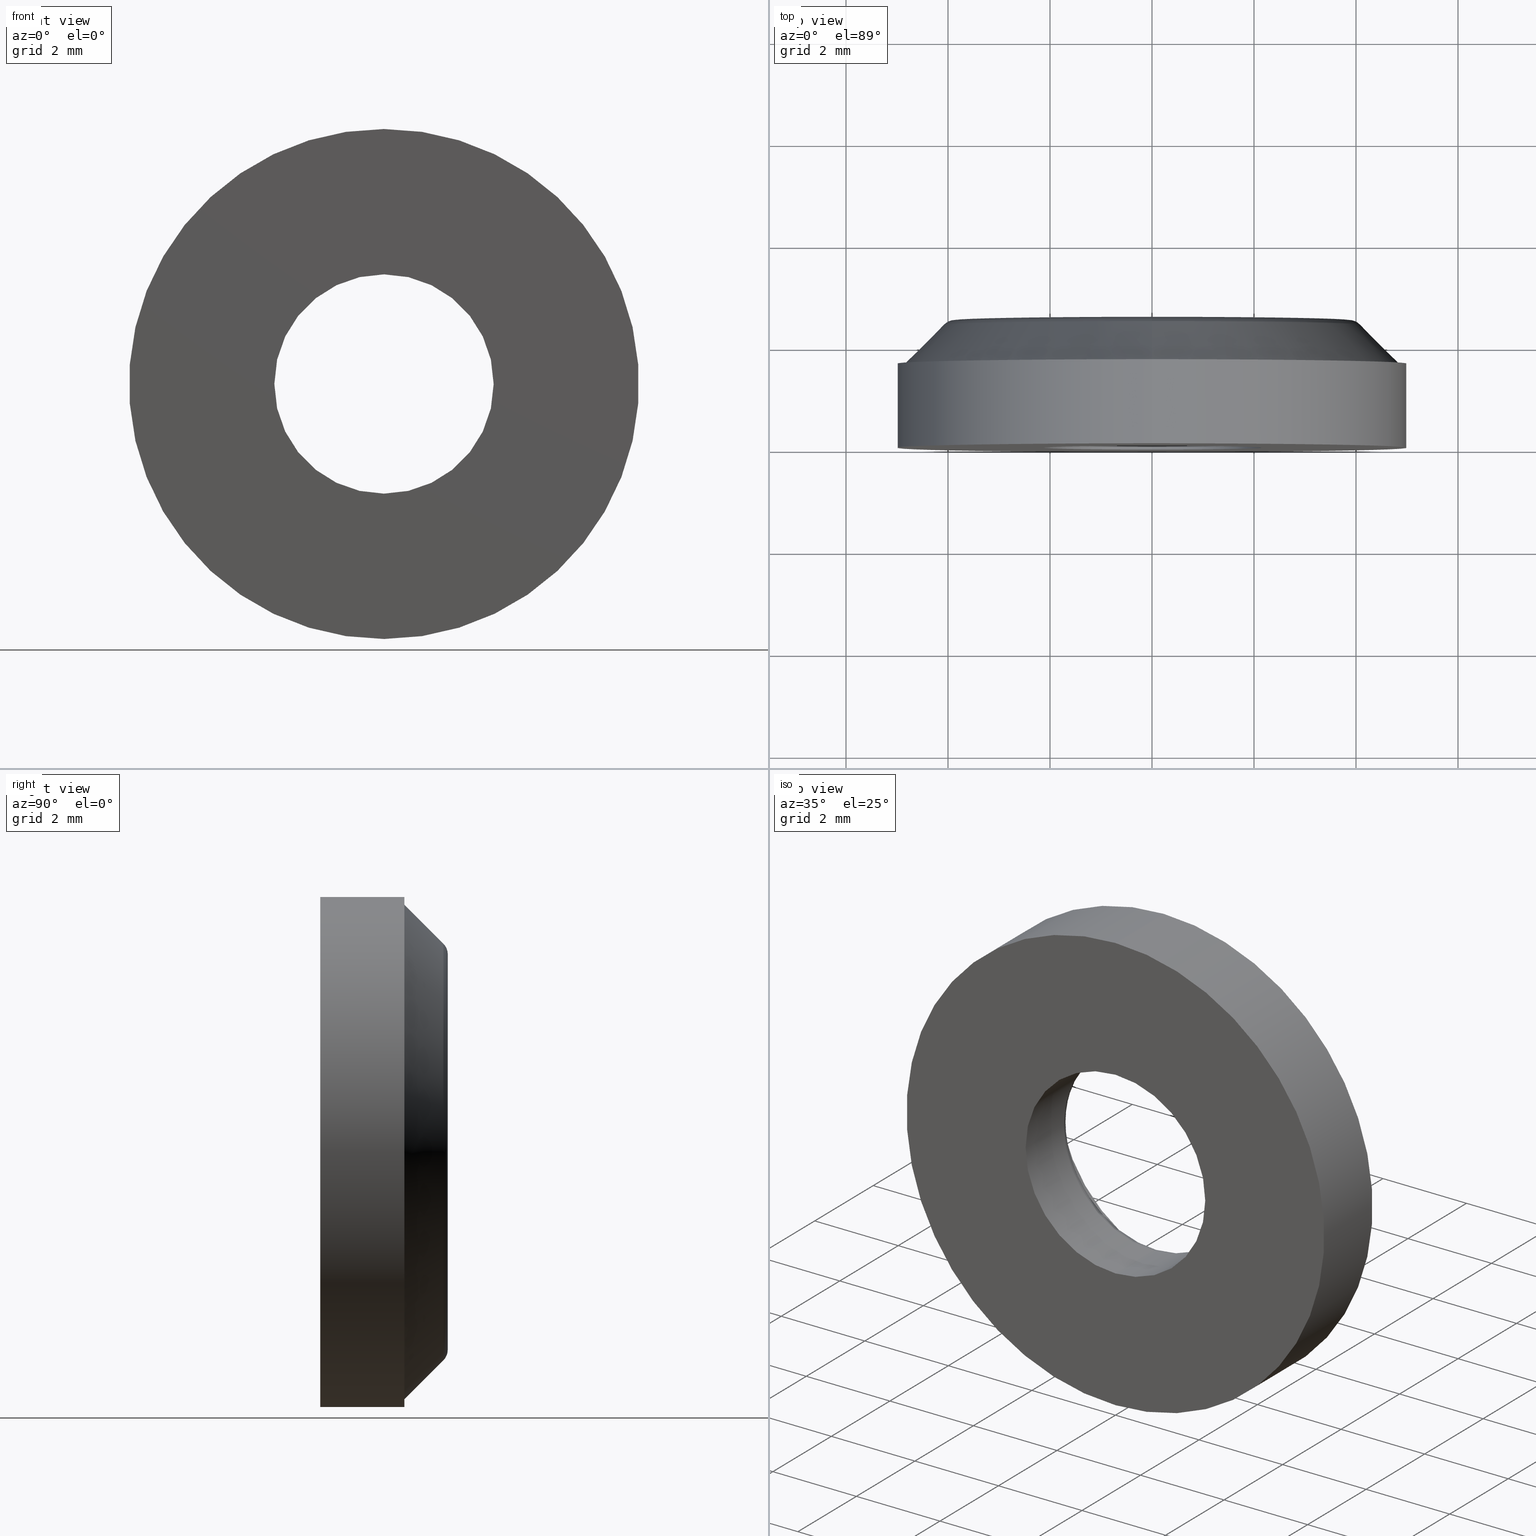
[diagram: canonical four-view strip — front | top / right | iso, engineering-drawing reading convention]
A machine part, canonical four-view strip (front | top / right | iso — engineering-drawing reading convention). The complete STEP part file that produces these views, byte-faithful:
ISO-10303-21;
HEADER;
FILE_DESCRIPTION (( 'STEP AP214' ),
    '1' );
FILE_NAME ('THA_270_2.STEP',
    '2015-04-27T05:34:12',
    ( '' ),
    ( '' ),
    'SwSTEP 2.0',
    'SolidWorks 2015',
    '' );
FILE_SCHEMA (( 'AUTOMOTIVE_DESIGN' ));
ENDSEC;

DATA;
#1 = ORIENTED_EDGE ( 'NONE', *, *, #445, .T. ) ;
#2 = AXIS2_PLACEMENT_3D ( 'NONE', #338, #74, #145 ) ;
#3 = UNCERTAINTY_MEASURE_WITH_UNIT (LENGTH_MEASURE( 1.000000000000000100E-005 ), #408, 'distance_accuracy_value', 'NONE');
#4 = EDGE_LOOP ( 'NONE', ( #323, #171, #404, #59 ) ) ;
#5 = AXIS2_PLACEMENT_3D ( 'NONE', #187, #157, #212 ) ;
#6 = FACE_OUTER_BOUND ( 'NONE', #311, .T. ) ;
#7 = DIRECTION ( 'NONE',  ( 0.0000000000000000000, 0.0000000000000000000, 1.000000000000000000 ) ) ;
#8 = CIRCLE ( 'NONE', #241, 4.087867965644037800 ) ;
#9 = SURFACE_STYLE_FILL_AREA ( #399 ) ;
#10 = EDGE_CURVE ( 'NONE', #479, #366, #147, .T. ) ;
#11 = DIRECTION ( 'NONE',  ( 0.0000000000000000000, 0.0000000000000000000, 1.000000000000000000 ) ) ;
#12 = ORIENTED_EDGE ( 'NONE', *, *, #280, .T. ) ;
#13 = CARTESIAN_POINT ( 'NONE',  ( 0.0000000000000000000, 1.300000000000000000, 0.0000000000000000000 ) ) ;
#14 = PRODUCT_DEFINITION ( 'UNKNOWN', '', #44, #435 ) ;
#15 = FACE_OUTER_BOUND ( 'NONE', #447, .T. ) ;
#16 = DIRECTION ( 'NONE',  ( 0.0000000000000000000, 1.000000000000000000, 0.0000000000000000000 ) ) ;
#17 = CARTESIAN_POINT ( 'NONE',  ( 3.796405077356794900E-016, 1.500000000000000000, -3.100000000000000100 ) ) ;
#18 = AXIS2_PLACEMENT_3D ( 'NONE', #329, #459, #214 ) ;
#19 = EDGE_LOOP ( 'NONE', ( #123, #288, #316, #43 ) ) ;
#20 = CARTESIAN_POINT ( 'NONE',  ( 0.0000000000000000000, 0.0000000000000000000, 0.0000000000000000000 ) ) ;
#21 = SURFACE_SIDE_STYLE ('',( #164 ) ) ;
#22 = EDGE_LOOP ( 'NONE', ( #133, #97, #31, #113 ) ) ;
#23 = CARTESIAN_POINT ( 'NONE',  ( 0.0000000000000000000, 1.300000000000000000, -2.149999999999999900 ) ) ;
#24 = DIRECTION ( 'NONE',  ( 0.0000000000000000000, 0.0000000000000000000, 1.000000000000000000 ) ) ;
#25 = VECTOR ( 'NONE', #301, 1000.000000000000000 ) ;
#26 = ADVANCED_FACE ( 'NONE', ( #357, #289 ), #264, .T. ) ;
#27 = EDGE_CURVE ( 'NONE', #398, #248, #514, .T. ) ;
#28 = DIRECTION ( 'NONE',  ( 0.0000000000000000000, -1.000000000000000000, 0.0000000000000000000 ) ) ;
#29 = CARTESIAN_POINT ( 'NONE',  ( 2.632990618166809200E-016, 1.300000000000000000, 2.149999999999999900 ) ) ;
#30 = DIRECTION ( 'NONE',  ( -0.0000000000000000000, -1.000000000000000000, -0.0000000000000000000 ) ) ;
#31 = ORIENTED_EDGE ( 'NONE', *, *, #483, .F. ) ;
#32 = VERTEX_POINT ( 'NONE', #431 ) ;
#33 = PRESENTATION_LAYER_ASSIGNMENT (  '', '', ( #488 ) ) ;
#34 = DIRECTION ( 'NONE',  ( 0.0000000000000000000, -0.0000000000000000000, -1.000000000000000000 ) ) ;
#35 = CARTESIAN_POINT ( 'NONE',  ( 0.0000000000000000000, 1.649999999999999500, 0.0000000000000000000 ) ) ;
#36 = CYLINDRICAL_SURFACE ( 'NONE', #81, 5.000000000000000000 ) ;
#37 = AXIS2_PLACEMENT_3D ( 'NONE', #495, #457, #216 ) ;
#38 = AXIS2_PLACEMENT_3D ( 'NONE', #60, #78, #270 ) ;
#39 = ORIENTED_EDGE ( 'NONE', *, *, #263, .F. ) ;
#40 = EDGE_CURVE ( 'NONE', #244, #481, #400, .T. ) ;
#41 = ADVANCED_FACE ( 'NONE', ( #389 ), #100, .T. ) ;
#42 = FACE_OUTER_BOUND ( 'NONE', #165, .T. ) ;
#43 = ORIENTED_EDGE ( 'NONE', *, *, #476, .T. ) ;
#44 = PRODUCT_DEFINITION_FORMATION_WITH_SPECIFIED_SOURCE ( 'ANY', '', #297, .NOT_KNOWN. ) ;
#45 = ORIENTED_EDGE ( 'NONE', *, *, #285, .F. ) ;
#46 = AXIS2_PLACEMENT_3D ( 'NONE', #140, #327, #492 ) ;
#47 = ADVANCED_FACE ( 'NONE', ( #274 ), #204, .F. ) ;
#48 = FACE_OUTER_BOUND ( 'NONE', #330, .T. ) ;
#49 = CIRCLE ( 'NONE', #149, 4.850000000000000500 ) ;
#50 = DIRECTION ( 'NONE',  ( 0.0000000000000000000, 1.000000000000000000, 0.0000000000000000000 ) ) ;
#51 = PRODUCT_DEFINITION_SHAPE ( 'NONE', 'NONE',  #515 ) ;
#52 = ORIENTED_EDGE ( 'NONE', *, *, #419, .T. ) ;
#53 = APPLICATION_CONTEXT ( 'automotive_design' ) ;
#54 = CIRCLE ( 'NONE', #37, 3.100000000000000100 ) ;
#55 = ORIENTED_EDGE ( 'NONE', *, *, #501, .F. ) ;
#56 = DIRECTION ( 'NONE',  ( 0.0000000000000000000, 0.0000000000000000000, 1.000000000000000000 ) ) ;
#57 = MECHANICAL_DESIGN_GEOMETRIC_PRESENTATION_REPRESENTATION (  '', ( #488 ), #85 ) ;
#58 = APPLICATION_CONTEXT ( 'automotive_design' ) ;
#59 = ORIENTED_EDGE ( 'NONE', *, *, #395, .F. ) ;
#60 = CARTESIAN_POINT ( 'NONE',  ( 0.0000000000000000000, 2.500000000000000000, 0.0000000000000000000 ) ) ;
#61 = CARTESIAN_POINT ( 'NONE',  ( 0.0000000000000000000, 1.500000000000000000, 2.350000000000000100 ) ) ;
#62 = CARTESIAN_POINT ( 'NONE',  ( 0.0000000000000000000, 2.500000000000000000, 0.0000000000000000000 ) ) ;
#63 = DIRECTION ( 'NONE',  ( -0.0000000000000000000, 1.000000000000000000, -0.0000000000000000000 ) ) ;
#64 = PRODUCT_CONTEXT ( 'NONE', #220, 'mechanical' ) ;
#65 = AXIS2_PLACEMENT_3D ( 'NONE', #411, #228, #303 ) ;
#66 = CARTESIAN_POINT ( 'NONE',  ( 6.123233995736766300E-016, 2.500000000000000000, 5.000000000000000000 ) ) ;
#67 = ORIENTED_EDGE ( 'NONE', *, *, #285, .T. ) ;
#68 = CARTESIAN_POINT ( 'NONE',  ( 0.0000000000000000000, 1.500000000000000000, 0.0000000000000000000 ) ) ;
#69 = ADVANCED_FACE ( 'NONE', ( #42 ), #242, .T. ) ;
#70 = DIRECTION ( 'NONE',  ( 0.0000000000000000000, -1.000000000000000000, 0.0000000000000000000 ) ) ;
#71 = CIRCLE ( 'NONE', #65, 3.100000000000000100 ) ;
#72 = ORIENTED_EDGE ( 'NONE', *, *, #27, .T. ) ;
#73 = CARTESIAN_POINT ( 'NONE',  ( 0.0000000000000000000, 1.649999999999999700, 4.850000000000000500 ) ) ;
#74 = DIRECTION ( 'NONE',  ( 0.0000000000000000000, 1.000000000000000000, 0.0000000000000000000 ) ) ;
#75 = EDGE_CURVE ( 'NONE', #503, #482, #312, .T. ) ;
#76 = PRODUCT_RELATED_PRODUCT_CATEGORY ( 'part', '', ( #297 ) ) ;
#77 = DIRECTION ( 'NONE',  ( -1.000000000000000000, 0.0000000000000000000, 0.0000000000000000000 ) ) ;
#78 = DIRECTION ( 'NONE',  ( 0.0000000000000000000, 1.000000000000000000, 0.0000000000000000000 ) ) ;
#79 = EDGE_LOOP ( 'NONE', ( #45, #215, #225, #425 ) ) ;
#80 = DIRECTION ( 'NONE',  ( -0.0000000000000000000, -1.000000000000000000, -0.0000000000000000000 ) ) ;
#81 = AXIS2_PLACEMENT_3D ( 'NONE', #62, #293, #106 ) ;
#82 = ORIENTED_EDGE ( 'NONE', *, *, #430, .T. ) ;
#83 = LINE ( 'NONE', #208, #375 ) ;
#84 = ORIENTED_EDGE ( 'NONE', *, *, #127, .T. ) ;
#85 =( GEOMETRIC_REPRESENTATION_CONTEXT ( 3 ) GLOBAL_UNCERTAINTY_ASSIGNED_CONTEXT ( ( #3 ) ) GLOBAL_UNIT_ASSIGNED_CONTEXT ( ( #408, #247, #407 ) ) REPRESENTATION_CONTEXT ( 'NONE', 'WORKASPACE' ) );
#86 = EDGE_LOOP ( 'NONE', ( #376, #490, #156, #276 ) ) ;
#87 = CONTEXT_DEPENDENT_SHAPE_REPRESENTATION ( #422, #51 ) ;
#88 = AXIS2_PLACEMENT_3D ( 'NONE', #421, #139, #486 ) ;
#89 = CARTESIAN_POINT ( 'NONE',  ( 0.0000000000000000000, 2.500000000000000000, 3.100000000000000100 ) ) ;
#90 = VECTOR ( 'NONE', #70, 1000.000000000000000 ) ;
#91 = ORIENTED_EDGE ( 'NONE', *, *, #501, .T. ) ;
#92 = AXIS2_PLACEMENT_3D ( 'NONE', #405, #271, #381 ) ;
#93 = DIRECTION ( 'NONE',  ( -0.0000000000000000000, 1.000000000000000000, -0.0000000000000000000 ) ) ;
#94 = UNCERTAINTY_MEASURE_WITH_UNIT (LENGTH_MEASURE( 1.000000000000000100E-005 ), #500, 'distance_accuracy_value', 'NONE');
#95 = DIRECTION ( 'NONE',  ( 0.0000000000000000000, 0.0000000000000000000, 1.000000000000000000 ) ) ;
#96 = EDGE_CURVE ( 'NONE', #346, #244, #8, .T. ) ;
#97 = ORIENTED_EDGE ( 'NONE', *, *, #371, .T. ) ;
#98 = PRODUCT_DEFINITION_FORMATION_WITH_SPECIFIED_SOURCE ( 'ANY', '', #252, .NOT_KNOWN. ) ;
#99 = ADVANCED_FACE ( 'NONE', ( #510 ), #374, .T. ) ;
#100 = TOROIDAL_SURFACE ( 'NONE', #177, 3.875735931288073500, 0.2999999999999999900 ) ;
#101 = DIRECTION ( 'NONE',  ( 0.0000000000000000000, 0.0000000000000000000, 1.000000000000000000 ) ) ;
#102 = DIRECTION ( 'NONE',  ( 0.0000000000000000000, 0.0000000000000000000, 1.000000000000000000 ) ) ;
#103 = AXIS2_PLACEMENT_3D ( 'NONE', #360, #331, #102 ) ;
#104 = SHAPE_DEFINITION_REPRESENTATION ( #448, #333 ) ;
#105 = DIRECTION ( 'NONE',  ( 0.0000000000000000000, 0.0000000000000000000, -1.000000000000000000 ) ) ;
#106 = DIRECTION ( 'NONE',  ( 0.0000000000000000000, 0.0000000000000000000, -1.000000000000000000 ) ) ;
#107 = CARTESIAN_POINT ( 'NONE',  ( 0.0000000000000000000, 0.0000000000000000000, -5.000000000000000000 ) ) ;
#108 = DIRECTION ( 'NONE',  ( 0.0000000000000000000, 0.0000000000000000000, -1.000000000000000000 ) ) ;
#109 = CIRCLE ( 'NONE', #440, 0.2999999999999999300 ) ;
#110 = EDGE_LOOP ( 'NONE', ( #379, #72 ) ) ;
#111 = DIRECTION ( 'NONE',  ( -0.0000000000000000000, 1.000000000000000000, -0.0000000000000000000 ) ) ;
#112 = DIRECTION ( 'NONE',  ( 0.0000000000000000000, 0.0000000000000000000, 1.000000000000000000 ) ) ;
#113 = ORIENTED_EDGE ( 'NONE', *, *, #419, .F. ) ;
#114 = DIRECTION ( 'NONE',  ( 0.0000000000000000000, 1.000000000000000000, 0.0000000000000000000 ) ) ;
#115 =( GEOMETRIC_REPRESENTATION_CONTEXT ( 3 ) GLOBAL_UNCERTAINTY_ASSIGNED_CONTEXT ( ( #237 ) ) GLOBAL_UNIT_ASSIGNED_CONTEXT ( ( #432, #295, #257 ) ) REPRESENTATION_CONTEXT ( 'NONE', 'WORKASPACE' ) );
#116 = DIRECTION ( 'NONE',  ( 0.0000000000000000000, -1.000000000000000000, 0.0000000000000000000 ) ) ;
#117 = DIRECTION ( 'NONE',  ( 0.0000000000000000000, 1.000000000000000000, 0.0000000000000000000 ) ) ;
#118 = APPLICATION_PROTOCOL_DEFINITION ( 'draft international standard', 'automotive_design', 1998, #220 ) ;
#119 = CARTESIAN_POINT ( 'NONE',  ( 0.0000000000000000000, 2.500000000000000000, 0.0000000000000000000 ) ) ;
#120 = ORIENTED_EDGE ( 'NONE', *, *, #96, .F. ) ;
#121 = AXIS2_PLACEMENT_3D ( 'NONE', #254, #211, #326 ) ;
#122 = CYLINDRICAL_SURFACE ( 'NONE', #188, 5.000000000000000000 ) ;
#123 = ORIENTED_EDGE ( 'NONE', *, *, #445, .F. ) ;
#124 = COLOUR_RGB ( '',0.7921568627450980000, 0.8196078431372548800, 0.9333333333333333500 ) ;
#125 = AXIS2_PLACEMENT_3D ( 'NONE', #349, #508, #196 ) ;
#126 = VERTEX_POINT ( 'NONE', #368 ) ;
#127 = EDGE_CURVE ( 'NONE', #466, #129, #235, .T. ) ;
#128 = PRODUCT_RELATED_PRODUCT_CATEGORY ( 'part', '', ( #252 ) ) ;
#129 = VERTEX_POINT ( 'NONE', #370 ) ;
#130 = ADVANCED_FACE ( 'NONE', ( #438 ), #415, .T. ) ;
#131 = AXIS2_PLACEMENT_3D ( 'NONE', #185, #162, #299 ) ;
#132 = CYLINDRICAL_SURFACE ( 'NONE', #131, 3.100000000000000100 ) ;
#133 = ORIENTED_EDGE ( 'NONE', *, *, #233, .T. ) ;
#134 = CARTESIAN_POINT ( 'NONE',  ( 6.123233995736766300E-016, 0.0000000000000000000, 5.000000000000000000 ) ) ;
#135 = CARTESIAN_POINT ( 'NONE',  ( 0.0000000000000000000, 2.412132034355964000, 0.0000000000000000000 ) ) ;
#136 = ADVANCED_FACE ( 'NONE', ( #268 ), #403, .F. ) ;
#137 = VERTEX_POINT ( 'NONE', #341 ) ;
#138 = FACE_BOUND ( 'NONE', #444, .T. ) ;
#139 = DIRECTION ( 'NONE',  ( 0.0000000000000000000, 1.000000000000000000, 0.0000000000000000000 ) ) ;
#140 = CARTESIAN_POINT ( 'NONE',  ( 0.0000000000000000000, 1.300000000000000000, 0.0000000000000000000 ) ) ;
#141 = SHAPE_REPRESENTATION ( 'facing ring', ( #200 ), #173 ) ;
#142 = ORIENTED_EDGE ( 'NONE', *, *, #10, .F. ) ;
#143 = EDGE_LOOP ( 'NONE', ( #55, #169 ) ) ;
#144 = SURFACE_STYLE_USAGE ( .BOTH. , #321 ) ;
#145 = DIRECTION ( 'NONE',  ( 0.0000000000000000000, -0.0000000000000000000, 1.000000000000000000 ) ) ;
#146 = CIRCLE ( 'NONE', #251, 0.2000000000000000900 ) ;
#147 = CIRCLE ( 'NONE', #38, 3.875735931288073500 ) ;
#148 = CARTESIAN_POINT ( 'NONE',  ( 0.0000000000000000000, 2.412132034355964000, 0.0000000000000000000 ) ) ;
#149 = AXIS2_PLACEMENT_3D ( 'NONE', #363, #63, #504 ) ;
#150 = CARTESIAN_POINT ( 'NONE',  ( 0.0000000000000000000, 1.649999999999999500, -4.850000000000000500 ) ) ;
#151 = ORIENTED_EDGE ( 'NONE', *, *, #10, .T. ) ;
#152 = AXIS2_PLACEMENT_3D ( 'NONE', #468, #114, #416 ) ;
#153 = DIRECTION ( 'NONE',  ( 1.000000000000000000, 0.0000000000000000000, 0.0000000000000000000 ) ) ;
#154 = DIRECTION ( 'NONE',  ( 0.0000000000000000000, 0.0000000000000000000, -1.000000000000000000 ) ) ;
#155 = CIRCLE ( 'NONE', #121, 4.850000000000000500 ) ;
#156 = ORIENTED_EDGE ( 'NONE', *, *, #512, .T. ) ;
#157 = DIRECTION ( 'NONE',  ( 0.0000000000000000000, 1.000000000000000000, 0.0000000000000000000 ) ) ;
#158 = DIRECTION ( 'NONE',  ( 0.0000000000000000000, 0.0000000000000000000, -1.000000000000000000 ) ) ;
#159 = ORIENTED_EDGE ( 'NONE', *, *, #280, .F. ) ;
#160 = DIRECTION ( 'NONE',  ( 0.0000000000000000000, 1.000000000000000000, 0.0000000000000000000 ) ) ;
#161 = AXIS2_PLACEMENT_3D ( 'NONE', #296, #160, #443 ) ;
#162 = DIRECTION ( 'NONE',  ( -0.0000000000000000000, 1.000000000000000000, -0.0000000000000000000 ) ) ;
#163 = ADVANCED_FACE ( 'NONE', ( #286, #174 ), #350, .F. ) ;
#164 = SURFACE_STYLE_FILL_AREA ( #335 ) ;
#165 = EDGE_LOOP ( 'NONE', ( #240, #120, #279, #142 ) ) ;
#166 = ORIENTED_EDGE ( 'NONE', *, *, #317, .F. ) ;
#167 = VECTOR ( 'NONE', #348, 999.9999999999998900 ) ;
#168 = VECTOR ( 'NONE', #309, 1000.000000000000000 ) ;
#169 = ORIENTED_EDGE ( 'NONE', *, *, #512, .F. ) ;
#170 = TOROIDAL_SURFACE ( 'NONE', #467, 2.350000000000000100, 0.2000000000000000100 ) ;
#171 = ORIENTED_EDGE ( 'NONE', *, *, #423, .T. ) ;
#172 = EDGE_LOOP ( 'NONE', ( #292, #1, #313, #506 ) ) ;
#173 =( GEOMETRIC_REPRESENTATION_CONTEXT ( 3 ) GLOBAL_UNCERTAINTY_ASSIGNED_CONTEXT ( ( #396 ) ) GLOBAL_UNIT_ASSIGNED_CONTEXT ( ( #406, #246, #328 ) ) REPRESENTATION_CONTEXT ( 'NONE', 'WORKASPACE' ) );
#174 = FACE_OUTER_BOUND ( 'NONE', #199, .T. ) ;
#175 = ADVANCED_FACE ( 'NONE', ( #15 ), #170, .T. ) ;
#176 = CARTESIAN_POINT ( 'NONE',  ( 5.472865697663817900E-016, 2.412132034355964000, 4.087867965644037800 ) ) ;
#177 = AXIS2_PLACEMENT_3D ( 'NONE', #218, #117, #24 ) ;
#178 = ADVANCED_FACE ( 'NONE', ( #138, #197 ), #499, .T. ) ;
#179 = LINE ( 'NONE', #337, #361 ) ;
#180 = DIRECTION ( 'NONE',  ( 1.000000000000000000, 0.0000000000000000000, 0.0000000000000000000 ) ) ;
#181 = DIRECTION ( 'NONE',  ( 0.0000000000000000000, 0.0000000000000000000, -1.000000000000000000 ) ) ;
#182 = CARTESIAN_POINT ( 'NONE',  ( 2.632990618166809200E-016, 0.0000000000000000000, 2.149999999999999900 ) ) ;
#183 = ORIENTED_EDGE ( 'NONE', *, *, #339, .F. ) ;
#184 = MANIFOLD_SOLID_BREP ( '̨گ�2', #236 ) ;
#185 = CARTESIAN_POINT ( 'NONE',  ( 0.0000000000000000000, 1.500000000000000000, 0.0000000000000000000 ) ) ;
#186 = ADVANCED_FACE ( 'NONE', ( #392 ), #238, .F. ) ;
#187 = CARTESIAN_POINT ( 'NONE',  ( 0.0000000000000000000, 2.500000000000000000, 0.0000000000000000000 ) ) ;
#188 = AXIS2_PLACEMENT_3D ( 'NONE', #452, #494, #108 ) ;
#189 = ADVANCED_FACE ( 'NONE', ( #48 ), #36, .T. ) ;
#190 = DIRECTION ( 'NONE',  ( -0.0000000000000000000, 1.000000000000000000, -0.0000000000000000000 ) ) ;
#191 = APPLICATION_PROTOCOL_DEFINITION ( 'draft international standard', 'automotive_design', 1998, #58 ) ;
#192 = CARTESIAN_POINT ( 'NONE',  ( 0.0000000000000000000, 1.500000000000000000, 0.0000000000000000000 ) ) ;
#193 = CIRCLE ( 'NONE', #498, 2.149999999999999900 ) ;
#194 = CARTESIAN_POINT ( 'NONE',  ( 2.632990618166809200E-016, 2.500000000000000000, 2.149999999999999900 ) ) ;
#195 = ORIENTED_EDGE ( 'NONE', *, *, #387, .F. ) ;
#196 = DIRECTION ( 'NONE',  ( 0.0000000000000000000, -0.0000000000000000000, 1.000000000000000000 ) ) ;
#197 = FACE_OUTER_BOUND ( 'NONE', #259, .T. ) ;
#198 = PRODUCT_DEFINITION_SHAPE ( 'NONE', 'NONE',  #480 ) ;
#199 = EDGE_LOOP ( 'NONE', ( #450, #159 ) ) ;
#200 = AXIS2_PLACEMENT_3D ( 'NONE', #213, #230, #153 ) ;
#201 = LINE ( 'NONE', #194, #90 ) ;
#202 = AXIS2_PLACEMENT_3D ( 'NONE', #68, #255, #461 ) ;
#203 = ORIENTED_EDGE ( 'NONE', *, *, #369, .T. ) ;
#204 = CYLINDRICAL_SURFACE ( 'NONE', #224, 2.149999999999999900 ) ;
#205 = AXIS2_PLACEMENT_3D ( 'NONE', #148, #28, #105 ) ;
#206 = FACE_OUTER_BOUND ( 'NONE', #79, .T. ) ;
#207 = DIRECTION ( 'NONE',  ( 0.0000000000000000000, 0.0000000000000000000, 1.000000000000000000 ) ) ;
#208 = CARTESIAN_POINT ( 'NONE',  ( 0.0000000000000000000, 2.500000000000000000, -2.149999999999999900 ) ) ;
#209 = CARTESIAN_POINT ( 'NONE',  ( 0.0000000000000000000, 0.0000000000000000000, -2.149999999999999900 ) ) ;
#210 = ORIENTED_EDGE ( 'NONE', *, *, #471, .F. ) ;
#211 = DIRECTION ( 'NONE',  ( -0.0000000000000000000, 1.000000000000000000, -0.0000000000000000000 ) ) ;
#212 = DIRECTION ( 'NONE',  ( 0.0000000000000000000, 0.0000000000000000000, 1.000000000000000000 ) ) ;
#213 = CARTESIAN_POINT ( 'NONE',  ( 0.0000000000000000000, 0.0000000000000000000, 0.0000000000000000000 ) ) ;
#214 = DIRECTION ( 'NONE',  ( 0.0000000000000000000, 0.0000000000000000000, -1.000000000000000000 ) ) ;
#215 = ORIENTED_EDGE ( 'NONE', *, *, #127, .F. ) ;
#216 = DIRECTION ( 'NONE',  ( 0.0000000000000000000, 0.0000000000000000000, 1.000000000000000000 ) ) ;
#217 = DIRECTION ( 'NONE',  ( 1.000000000000000000, 0.0000000000000000000, 0.0000000000000000000 ) ) ;
#218 = CARTESIAN_POINT ( 'NONE',  ( 0.0000000000000000000, 2.200000000000000200, 0.0000000000000000000 ) ) ;
#219 = CIRCLE ( 'NONE', #161, 5.000000000000000000 ) ;
#220 = APPLICATION_CONTEXT ( 'automotive_design' ) ;
#221 = STYLED_ITEM ( 'NONE', ( #420 ), #472 ) ;
#222 = CARTESIAN_POINT ( 'NONE',  ( 0.0000000000000000000, 0.0000000000000000000, 0.0000000000000000000 ) ) ;
#223 = DIRECTION ( 'NONE',  ( 0.0000000000000000000, 0.0000000000000000000, 1.000000000000000000 ) ) ;
#224 = AXIS2_PLACEMENT_3D ( 'NONE', #119, #227, #158 ) ;
#225 = ORIENTED_EDGE ( 'NONE', *, *, #387, .T. ) ;
#226 = CARTESIAN_POINT ( 'NONE',  ( 0.0000000000000000000, 0.0000000000000000000, 0.0000000000000000000 ) ) ;
#227 = DIRECTION ( 'NONE',  ( 0.0000000000000000000, -1.000000000000000000, 0.0000000000000000000 ) ) ;
#228 = DIRECTION ( 'NONE',  ( 0.0000000000000000000, 1.000000000000000000, 0.0000000000000000000 ) ) ;
#229 = DIRECTION ( 'NONE',  ( 0.0000000000000000000, 0.0000000000000000000, 1.000000000000000000 ) ) ;
#230 = DIRECTION ( 'NONE',  ( 0.0000000000000000000, 0.0000000000000000000, 1.000000000000000000 ) ) ;
#231 = ORIENTED_EDGE ( 'NONE', *, *, #40, .T. ) ;
#232 = AXIS2_PLACEMENT_3D ( 'NONE', #73, #384, #34 ) ;
#233 = EDGE_CURVE ( 'NONE', #359, #362, #456, .T. ) ;
#234 = CIRCLE ( 'NONE', #103, 5.000000000000000000 ) ;
#235 = CIRCLE ( 'NONE', #304, 2.350000000000000100 ) ;
#236 = CLOSED_SHELL ( 'NONE', ( #175, #41, #99, #47, #260, #189, #26, #278, #163, #136, #178, #186, #130, #281, #69, #344 ) ) ;
#237 = UNCERTAINTY_MEASURE_WITH_UNIT (LENGTH_MEASURE( 1.000000000000000100E-005 ), #432, 'distance_accuracy_value', 'NONE');
#238 = CYLINDRICAL_SURFACE ( 'NONE', #18, 2.149999999999999900 ) ;
#239 = PRESENTATION_LAYER_ASSIGNMENT (  '', '', ( #221 ) ) ;
#240 = ORIENTED_EDGE ( 'NONE', *, *, #423, .F. ) ;
#241 = AXIS2_PLACEMENT_3D ( 'NONE', #135, #308, #474 ) ;
#242 = TOROIDAL_SURFACE ( 'NONE', #152, 3.875735931288073500, 0.2999999999999999900 ) ;
#243 = VECTOR ( 'NONE', #507, 999.9999999999998900 ) ;
#244 = VERTEX_POINT ( 'NONE', #487 ) ;
#245 = DIRECTION ( 'NONE',  ( 1.224646799147353200E-016, 0.0000000000000000000, -1.000000000000000000 ) ) ;
#246 =( NAMED_UNIT ( * ) PLANE_ANGLE_UNIT ( ) SI_UNIT ( $, .RADIAN. ) );
#247 =( NAMED_UNIT ( * ) PLANE_ANGLE_UNIT ( ) SI_UNIT ( $, .RADIAN. ) );
#248 = VERTEX_POINT ( 'NONE', #209 ) ;
#249 = DIRECTION ( 'NONE',  ( 1.000000000000000000, -0.0000000000000000000, 1.224646799147353200E-016 ) ) ;
#250 = CARTESIAN_POINT ( 'NONE',  ( 0.0000000000000000000, 1.649999999999999900, -5.000000000000000000 ) ) ;
#251 = AXIS2_PLACEMENT_3D ( 'NONE', #460, #249, #245 ) ;
#252 = PRODUCT ( 'facing ring', 'facing ring', '', ( #300 ) ) ;
#253 = ORIENTED_EDGE ( 'NONE', *, *, #272, .F. ) ;
#254 = CARTESIAN_POINT ( 'NONE',  ( 0.0000000000000000000, 1.649999999999999500, 0.0000000000000000000 ) ) ;
#255 = DIRECTION ( 'NONE',  ( 0.0000000000000000000, 1.000000000000000000, 0.0000000000000000000 ) ) ;
#256 = VERTEX_POINT ( 'NONE', #250 ) ;
#257 =( NAMED_UNIT ( * ) SI_UNIT ( $, .STERADIAN. ) SOLID_ANGLE_UNIT ( ) );
#258 = CARTESIAN_POINT ( 'NONE',  ( 0.0000000000000000000, 1.649999999999999500, 0.0000000000000000000 ) ) ;
#259 = EDGE_LOOP ( 'NONE', ( #418, #203 ) ) ;
#260 = ADVANCED_FACE ( 'NONE', ( #336 ), #132, .F. ) ;
#261 = EDGE_LOOP ( 'NONE', ( #253, #265, #484, #355 ) ) ;
#262 = CARTESIAN_POINT ( 'NONE',  ( 3.796405077356794900E-016, 1.500000000000000000, -3.100000000000000100 ) ) ;
#263 = EDGE_CURVE ( 'NONE', #32, #256, #234, .T. ) ;
#264 = PLANE ( 'NONE',  #125 ) ;
#265 = ORIENTED_EDGE ( 'NONE', *, *, #394, .F. ) ;
#266 = DIRECTION ( 'NONE',  ( 0.0000000000000000000, 0.0000000000000000000, 1.000000000000000000 ) ) ;
#267 = EDGE_LOOP ( 'NONE', ( #410, #352, #231, #91 ) ) ;
#268 = FACE_OUTER_BOUND ( 'NONE', #19, .T. ) ;
#269 = CARTESIAN_POINT ( 'NONE',  ( 0.0000000000000000000, 0.0000000000000000000, 0.0000000000000000000 ) ) ;
#270 = DIRECTION ( 'NONE',  ( 0.0000000000000000000, 0.0000000000000000000, 1.000000000000000000 ) ) ;
#271 = DIRECTION ( 'NONE',  ( 0.0000000000000000000, 1.000000000000000000, 0.0000000000000000000 ) ) ;
#272 = EDGE_CURVE ( 'NONE', #32, #382, #441, .T. ) ;
#273 = MECHANICAL_DESIGN_GEOMETRIC_PRESENTATION_REPRESENTATION (  '', ( #221 ), #115 ) ;
#274 = FACE_OUTER_BOUND ( 'NONE', #22, .T. ) ;
#275 = CIRCLE ( 'NONE', #5, 3.875735931288073500 ) ;
#276 = ORIENTED_EDGE ( 'NONE', *, *, #40, .F. ) ;
#277 = AXIS2_PLACEMENT_3D ( 'NONE', #258, #378, #181 ) ;
#278 = ADVANCED_FACE ( 'NONE', ( #351 ), #122, .T. ) ;
#279 = ORIENTED_EDGE ( 'NONE', *, *, #395, .T. ) ;
#280 = EDGE_CURVE ( 'NONE', #382, #391, #219, .T. ) ;
#281 = ADVANCED_FACE ( 'NONE', ( #320, #6 ), #325, .F. ) ;
#282 = AXIS2_PLACEMENT_3D ( 'NONE', #454, #80, #56 ) ;
#283 = EDGE_CURVE ( 'NONE', #244, #346, #417, .T. ) ;
#284 = DIRECTION ( 'NONE',  ( 0.0000000000000000000, 0.0000000000000000000, 1.000000000000000000 ) ) ;
#285 = EDGE_CURVE ( 'NONE', #129, #359, #146, .T. ) ;
#286 = FACE_BOUND ( 'NONE', #110, .T. ) ;
#287 = CIRCLE ( 'NONE', #386, 0.2000000000000000900 ) ;
#288 = ORIENTED_EDGE ( 'NONE', *, *, #75, .F. ) ;
#289 = FACE_BOUND ( 'NONE', #470, .T. ) ;
#290 = VERTEX_POINT ( 'NONE', #89 ) ;
#291 = APPLICATION_CONTEXT ( 'automotive_design' ) ;
#292 = ORIENTED_EDGE ( 'NONE', *, *, #369, .F. ) ;
#293 = DIRECTION ( 'NONE',  ( -0.0000000000000000000, -1.000000000000000000, -0.0000000000000000000 ) ) ;
#294 = ORIENTED_EDGE ( 'NONE', *, *, #394, .T. ) ;
#295 =( NAMED_UNIT ( * ) PLANE_ANGLE_UNIT ( ) SI_UNIT ( $, .RADIAN. ) );
#296 = CARTESIAN_POINT ( 'NONE',  ( 0.0000000000000000000, 0.0000000000000000000, 0.0000000000000000000 ) ) ;
#297 = PRODUCT ( 'THA_270_2', 'THA_270_2', '', ( #64 ) ) ;
#298 = FILL_AREA_STYLE_COLOUR ( '', #124 ) ;
#299 = DIRECTION ( 'NONE',  ( 0.0000000000000000000, 0.0000000000000000000, 1.000000000000000000 ) ) ;
#300 = PRODUCT_CONTEXT ( 'NONE', #291, 'mechanical' ) ;
#301 = DIRECTION ( 'NONE',  ( -0.0000000000000000000, -1.000000000000000000, -0.0000000000000000000 ) ) ;
#302 = CIRCLE ( 'NONE', #314, 5.000000000000000000 ) ;
#303 = DIRECTION ( 'NONE',  ( 0.0000000000000000000, 0.0000000000000000000, 1.000000000000000000 ) ) ;
#304 = AXIS2_PLACEMENT_3D ( 'NONE', #310, #30, #229 ) ;
#305 = APPLICATION_PROTOCOL_DEFINITION ( 'draft international standard', 'automotive_design', 1998, #291 ) ;
#306 = ORIENTED_EDGE ( 'NONE', *, *, #433, .T. ) ;
#307 = CARTESIAN_POINT ( 'NONE',  ( 4.876301011027650100E-016, 2.500000000000000000, -3.875735931288073500 ) ) ;
#308 = DIRECTION ( 'NONE',  ( 0.0000000000000000000, -1.000000000000000000, 0.0000000000000000000 ) ) ;
#309 = DIRECTION ( 'NONE',  ( -0.0000000000000000000, 1.000000000000000000, -0.0000000000000000000 ) ) ;
#310 = CARTESIAN_POINT ( 'NONE',  ( 0.0000000000000000000, 1.500000000000000000, 0.0000000000000000000 ) ) ;
#311 = EDGE_LOOP ( 'NONE', ( #294, #453 ) ) ;
#312 = CIRCLE ( 'NONE', #202, 3.100000000000000100 ) ;
#313 = ORIENTED_EDGE ( 'NONE', *, *, #471, .T. ) ;
#314 = AXIS2_PLACEMENT_3D ( 'NONE', #20, #489, #266 ) ;
#315 = CIRCLE ( 'NONE', #282, 2.350000000000000100 ) ;
#316 = ORIENTED_EDGE ( 'NONE', *, *, #442, .T. ) ;
#317 = EDGE_CURVE ( 'NONE', #129, #466, #315, .T. ) ;
#318 = ORIENTED_EDGE ( 'NONE', *, *, #272, .T. ) ;
#319 = PRESENTATION_STYLE_ASSIGNMENT (( #496 ) ) ;
#320 = FACE_BOUND ( 'NONE', #143, .T. ) ;
#321 = SURFACE_SIDE_STYLE ('',( #9 ) ) ;
#322 = DIRECTION ( 'NONE',  ( 0.0000000000000000000, -1.000000000000000000, 0.0000000000000000000 ) ) ;
#323 = ORIENTED_EDGE ( 'NONE', *, *, #283, .F. ) ;
#324 = AXIS2_PLACEMENT_3D ( 'NONE', #35, #322, #154 ) ;
#325 = PLANE ( 'NONE',  #232 ) ;
#326 = DIRECTION ( 'NONE',  ( 0.0000000000000000000, 0.0000000000000000000, 1.000000000000000000 ) ) ;
#327 = DIRECTION ( 'NONE',  ( 0.0000000000000000000, 1.000000000000000000, 0.0000000000000000000 ) ) ;
#328 =( NAMED_UNIT ( * ) SI_UNIT ( $, .STERADIAN. ) SOLID_ANGLE_UNIT ( ) );
#329 = CARTESIAN_POINT ( 'NONE',  ( 0.0000000000000000000, 2.500000000000000000, 0.0000000000000000000 ) ) ;
#330 = EDGE_LOOP ( 'NONE', ( #39, #318, #12, #183 ) ) ;
#331 = DIRECTION ( 'NONE',  ( -0.0000000000000000000, 1.000000000000000000, -0.0000000000000000000 ) ) ;
#332 = CARTESIAN_POINT ( 'NONE',  ( 5.939536975864663000E-016, 1.649999999999999500, 4.850000000000000500 ) ) ;
#333 = SHAPE_REPRESENTATION ( 'THA_270_2', ( #449, #390 ), #426 ) ;
#334 = AXIS2_PLACEMENT_3D ( 'NONE', #464, #493, #101 ) ;
#335 = FILL_AREA_STYLE ('',( #428 ) ) ;
#336 = FACE_OUTER_BOUND ( 'NONE', #172, .T. ) ;
#337 = CARTESIAN_POINT ( 'NONE',  ( 0.0000000000000000000, 1.500000000000000000, 3.100000000000000100 ) ) ;
#338 = CARTESIAN_POINT ( 'NONE',  ( 0.0000000000000000000, 1.500000000000000000, 0.0000000000000000000 ) ) ;
#339 = EDGE_CURVE ( 'NONE', #256, #391, #434, .T. ) ;
#340 = APPLICATION_PROTOCOL_DEFINITION ( 'draft international standard', 'automotive_design', 1998, #53 ) ;
#341 = CARTESIAN_POINT ( 'NONE',  ( 3.796405077356794900E-016, 2.500000000000000000, -3.100000000000000100 ) ) ;
#342 = ORIENTED_EDGE ( 'NONE', *, *, #476, .F. ) ;
#343 = CARTESIAN_POINT ( 'NONE',  ( 0.0000000000000000000, 1.300000000000000000, 0.0000000000000000000 ) ) ;
#344 = ADVANCED_FACE ( 'NONE', ( #206 ), #397, .T. ) ;
#345 =( NAMED_UNIT ( * ) SI_UNIT ( $, .STERADIAN. ) SOLID_ANGLE_UNIT ( ) );
#346 = VERTEX_POINT ( 'NONE', #176 ) ;
#347 = DIRECTION ( 'NONE',  ( 1.000000000000000000, 0.0000000000000000000, 0.0000000000000000000 ) ) ;
#348 = DIRECTION ( 'NONE',  ( 0.0000000000000000000, -0.7071067811865489100, -0.7071067811865462400 ) ) ;
#349 = CARTESIAN_POINT ( 'NONE',  ( 0.0000000000000000000, 2.500000000000000000, 0.0000000000000000000 ) ) ;
#350 = PLANE ( 'NONE',  #437 ) ;
#351 = FACE_OUTER_BOUND ( 'NONE', #261, .T. ) ;
#352 = ORIENTED_EDGE ( 'NONE', *, *, #96, .T. ) ;
#353 = SHAPE_REPRESENTATION_RELATIONSHIP ( 'NONE' , 'NONE' ,  #141, #472 ) ;
#354 = ORIENTED_EDGE ( 'NONE', *, *, #317, .T. ) ;
#355 = ORIENTED_EDGE ( 'NONE', *, *, #358, .T. ) ;
#356 = AXIS2_PLACEMENT_3D ( 'NONE', #365, #16, #112 ) ;
#357 = FACE_OUTER_BOUND ( 'NONE', #377, .T. ) ;
#358 = EDGE_CURVE ( 'NONE', #391, #382, #302, .T. ) ;
#359 = VERTEX_POINT ( 'NONE', #23 ) ;
#360 = CARTESIAN_POINT ( 'NONE',  ( 0.0000000000000000000, 1.649999999999999900, 0.0000000000000000000 ) ) ;
#361 = VECTOR ( 'NONE', #190, 1000.000000000000000 ) ;
#362 = VERTEX_POINT ( 'NONE', #29 ) ;
#363 = CARTESIAN_POINT ( 'NONE',  ( 0.0000000000000000000, 1.649999999999999500, 0.0000000000000000000 ) ) ;
#364 = AXIS2_PLACEMENT_3D ( 'NONE', #226, #223, #347 ) ;
#365 = CARTESIAN_POINT ( 'NONE',  ( 0.0000000000000000000, 1.500000000000000000, 0.0000000000000000000 ) ) ;
#366 = VERTEX_POINT ( 'NONE', #367 ) ;
#367 = CARTESIAN_POINT ( 'NONE',  ( 0.0000000000000000000, 2.500000000000000000, 3.875735931288073500 ) ) ;
#368 = CARTESIAN_POINT ( 'NONE',  ( 5.939536975864663000E-016, 1.649999999999999500, 4.850000000000000500 ) ) ;
#369 = EDGE_CURVE ( 'NONE', #482, #503, #388, .T. ) ;
#370 = CARTESIAN_POINT ( 'NONE',  ( 2.877919977996279800E-016, 1.500000000000000000, -2.350000000000000100 ) ) ;
#371 = EDGE_CURVE ( 'NONE', #362, #398, #201, .T. ) ;
#372 = CARTESIAN_POINT ( 'NONE',  ( 0.0000000000000000000, 2.200000000000000200, 3.875735931288073500 ) ) ;
#373 = ORIENTED_EDGE ( 'NONE', *, *, #27, .F. ) ;
#374 = CONICAL_SURFACE ( 'NONE', #277, 4.850000000000000500, 0.7853981633974465000 ) ;
#375 = VECTOR ( 'NONE', #116, 1000.000000000000000 ) ;
#376 = ORIENTED_EDGE ( 'NONE', *, *, #283, .T. ) ;
#377 = EDGE_LOOP ( 'NONE', ( #306, #151 ) ) ;
#378 = DIRECTION ( 'NONE',  ( 0.0000000000000000000, -1.000000000000000000, 0.0000000000000000000 ) ) ;
#379 = ORIENTED_EDGE ( 'NONE', *, *, #483, .T. ) ;
#380 = CARTESIAN_POINT ( 'NONE',  ( 0.0000000000000000000, 2.500000000000000000, -5.000000000000000000 ) ) ;
#381 = DIRECTION ( 'NONE',  ( 0.0000000000000000000, 0.0000000000000000000, 1.000000000000000000 ) ) ;
#382 = VERTEX_POINT ( 'NONE', #134 ) ;
#383 = COLOUR_RGB ( '',0.7921568627450980000, 0.8196078431372548800, 0.9333333333333333500 ) ;
#384 = DIRECTION ( 'NONE',  ( 0.0000000000000000000, -1.000000000000000000, 0.0000000000000000000 ) ) ;
#385 = DIRECTION ( 'NONE',  ( 0.0000000000000000000, 1.000000000000000000, 0.0000000000000000000 ) ) ;
#386 = AXIS2_PLACEMENT_3D ( 'NONE', #462, #469, #424 ) ;
#387 = EDGE_CURVE ( 'NONE', #466, #362, #287, .T. ) ;
#388 = CIRCLE ( 'NONE', #356, 3.100000000000000100 ) ;
#389 = FACE_OUTER_BOUND ( 'NONE', #4, .T. ) ;
#390 = AXIS2_PLACEMENT_3D ( 'NONE', #269, #7, #180 ) ;
#391 = VERTEX_POINT ( 'NONE', #107 ) ;
#392 = FACE_OUTER_BOUND ( 'NONE', #509, .T. ) ;
#393 = ITEM_DEFINED_TRANSFORMATION ( 'NONE', 'NONE', #390,  #200 ) ;
#394 = EDGE_CURVE ( 'NONE', #256, #32, #502, .T. ) ;
#395 = EDGE_CURVE ( 'NONE', #346, #366, #109, .T. ) ;
#396 = UNCERTAINTY_MEASURE_WITH_UNIT (LENGTH_MEASURE( 1.000000000000000100E-005 ), #406, 'distance_accuracy_value', 'NONE');
#397 = TOROIDAL_SURFACE ( 'NONE', #334, 2.350000000000000100, 0.2000000000000000100 ) ;
#398 = VERTEX_POINT ( 'NONE', #182 ) ;
#399 = FILL_AREA_STYLE ('',( #298 ) ) ;
#400 = LINE ( 'NONE', #150, #167 ) ;
#401 = DIRECTION ( 'NONE',  ( -0.0000000000000000000, -1.000000000000000000, -0.0000000000000000000 ) ) ;
#402 = AXIS2_PLACEMENT_3D ( 'NONE', #192, #111, #463 ) ;
#403 = CYLINDRICAL_SURFACE ( 'NONE', #402, 3.100000000000000100 ) ;
#404 = ORIENTED_EDGE ( 'NONE', *, *, #433, .F. ) ;
#405 = CARTESIAN_POINT ( 'NONE',  ( 0.0000000000000000000, 0.0000000000000000000, 0.0000000000000000000 ) ) ;
#406 =( LENGTH_UNIT ( ) NAMED_UNIT ( * ) SI_UNIT ( .MILLI., .METRE. ) );
#407 =( NAMED_UNIT ( * ) SI_UNIT ( $, .STERADIAN. ) SOLID_ANGLE_UNIT ( ) );
#408 =( LENGTH_UNIT ( ) NAMED_UNIT ( * ) SI_UNIT ( .MILLI., .METRE. ) );
#409 = PRODUCT_DEFINITION_CONTEXT ( 'detailed design', #58, 'design' ) ;
#410 = ORIENTED_EDGE ( 'NONE', *, *, #477, .F. ) ;
#411 = CARTESIAN_POINT ( 'NONE',  ( 0.0000000000000000000, 2.500000000000000000, 0.0000000000000000000 ) ) ;
#412 = AXIS2_PLACEMENT_3D ( 'NONE', #473, #93, #429 ) ;
#413 = DIRECTION ( 'NONE',  ( 0.0000000000000000000, -0.0000000000000000000, 1.000000000000000000 ) ) ;
#414 = DIRECTION ( 'NONE',  ( 1.000000000000000000, -0.0000000000000000000, 1.224646799147353200E-016 ) ) ;
#415 = CONICAL_SURFACE ( 'NONE', #324, 4.850000000000000500, 0.7853981633974465000 ) ;
#416 = DIRECTION ( 'NONE',  ( 0.0000000000000000000, 0.0000000000000000000, 1.000000000000000000 ) ) ;
#417 = CIRCLE ( 'NONE', #205, 4.087867965644037800 ) ;
#418 = ORIENTED_EDGE ( 'NONE', *, *, #75, .T. ) ;
#419 = EDGE_CURVE ( 'NONE', #359, #248, #83, .T. ) ;
#420 = PRESENTATION_STYLE_ASSIGNMENT (( #144 ) ) ;
#421 = CARTESIAN_POINT ( 'NONE',  ( 0.0000000000000000000, 0.0000000000000000000, 0.0000000000000000000 ) ) ;
#422 =( REPRESENTATION_RELATIONSHIP ('NONE','NONE', #333, #141 ) REPRESENTATION_RELATIONSHIP_WITH_TRANSFORMATION ( #393 )SHAPE_REPRESENTATION_RELATIONSHIP( ) );
#423 = EDGE_CURVE ( 'NONE', #244, #479, #485, .T. ) ;
#424 = DIRECTION ( 'NONE',  ( 0.0000000000000000000, 0.0000000000000000000, 1.000000000000000000 ) ) ;
#425 = ORIENTED_EDGE ( 'NONE', *, *, #233, .F. ) ;
#426 =( GEOMETRIC_REPRESENTATION_CONTEXT ( 3 ) GLOBAL_UNCERTAINTY_ASSIGNED_CONTEXT ( ( #94 ) ) GLOBAL_UNIT_ASSIGNED_CONTEXT ( ( #500, #427, #345 ) ) REPRESENTATION_CONTEXT ( 'NONE', 'WORKASPACE' ) );
#427 =( NAMED_UNIT ( * ) PLANE_ANGLE_UNIT ( ) SI_UNIT ( $, .RADIAN. ) );
#428 = FILL_AREA_STYLE_COLOUR ( '', #383 ) ;
#429 = DIRECTION ( 'NONE',  ( 0.0000000000000000000, 0.0000000000000000000, 1.000000000000000000 ) ) ;
#430 = EDGE_CURVE ( 'NONE', #362, #359, #193, .T. ) ;
#431 = CARTESIAN_POINT ( 'NONE',  ( 6.123233995736766300E-016, 1.649999999999999900, 5.000000000000000000 ) ) ;
#432 =( LENGTH_UNIT ( ) NAMED_UNIT ( * ) SI_UNIT ( .MILLI., .METRE. ) );
#433 = EDGE_CURVE ( 'NONE', #366, #479, #275, .T. ) ;
#434 = LINE ( 'NONE', #380, #513 ) ;
#435 = PRODUCT_DEFINITION_CONTEXT ( 'detailed design', #53, 'design' ) ;
#436 = ORIENTED_EDGE ( 'NONE', *, *, #430, .F. ) ;
#437 = AXIS2_PLACEMENT_3D ( 'NONE', #222, #455, #413 ) ;
#438 = FACE_OUTER_BOUND ( 'NONE', #267, .T. ) ;
#439 = ORIENTED_EDGE ( 'NONE', *, *, #371, .F. ) ;
#440 = AXIS2_PLACEMENT_3D ( 'NONE', #372, #77, #284 ) ;
#441 = LINE ( 'NONE', #66, #25 ) ;
#442 = EDGE_CURVE ( 'NONE', #503, #290, #179, .T. ) ;
#443 = DIRECTION ( 'NONE',  ( 0.0000000000000000000, 0.0000000000000000000, 1.000000000000000000 ) ) ;
#444 = EDGE_LOOP ( 'NONE', ( #84, #354 ) ) ;
#445 = EDGE_CURVE ( 'NONE', #482, #137, #478, .T. ) ;
#446 = CARTESIAN_POINT ( 'NONE',  ( 0.0000000000000000000, 0.0000000000000000000, 0.0000000000000000000 ) ) ;
#447 = EDGE_LOOP ( 'NONE', ( #166, #67, #436, #195 ) ) ;
#448 = PRODUCT_DEFINITION_SHAPE ( 'NONE', 'NONE',  #14 ) ;
#449 = AXIS2_PLACEMENT_3D ( 'NONE', #446, #207, #217 ) ;
#450 = ORIENTED_EDGE ( 'NONE', *, *, #358, .F. ) ;
#451 = CARTESIAN_POINT ( 'NONE',  ( 4.746407602592325300E-016, 2.200000000000000200, -3.875735931288073500 ) ) ;
#452 = CARTESIAN_POINT ( 'NONE',  ( 0.0000000000000000000, 2.500000000000000000, 0.0000000000000000000 ) ) ;
#453 = ORIENTED_EDGE ( 'NONE', *, *, #263, .T. ) ;
#454 = CARTESIAN_POINT ( 'NONE',  ( 0.0000000000000000000, 1.500000000000000000, 0.0000000000000000000 ) ) ;
#455 = DIRECTION ( 'NONE',  ( 0.0000000000000000000, 1.000000000000000000, 0.0000000000000000000 ) ) ;
#456 = CIRCLE ( 'NONE', #46, 2.149999999999999900 ) ;
#457 = DIRECTION ( 'NONE',  ( 0.0000000000000000000, 1.000000000000000000, 0.0000000000000000000 ) ) ;
#458 = CIRCLE ( 'NONE', #88, 2.149999999999999900 ) ;
#459 = DIRECTION ( 'NONE',  ( 0.0000000000000000000, -1.000000000000000000, 0.0000000000000000000 ) ) ;
#460 = CARTESIAN_POINT ( 'NONE',  ( 2.877919977996279800E-016, 1.300000000000000000, -2.350000000000000100 ) ) ;
#461 = DIRECTION ( 'NONE',  ( 0.0000000000000000000, 0.0000000000000000000, 1.000000000000000000 ) ) ;
#462 = CARTESIAN_POINT ( 'NONE',  ( 0.0000000000000000000, 1.300000000000000000, 2.350000000000000100 ) ) ;
#463 = DIRECTION ( 'NONE',  ( 0.0000000000000000000, 0.0000000000000000000, 1.000000000000000000 ) ) ;
#464 = CARTESIAN_POINT ( 'NONE',  ( 0.0000000000000000000, 1.300000000000000000, 0.0000000000000000000 ) ) ;
#465 = LINE ( 'NONE', #332, #243 ) ;
#466 = VERTEX_POINT ( 'NONE', #61 ) ;
#467 = AXIS2_PLACEMENT_3D ( 'NONE', #343, #385, #95 ) ;
#468 = CARTESIAN_POINT ( 'NONE',  ( 0.0000000000000000000, 2.200000000000000200, 0.0000000000000000000 ) ) ;
#469 = DIRECTION ( 'NONE',  ( -1.000000000000000000, 0.0000000000000000000, 0.0000000000000000000 ) ) ;
#470 = EDGE_LOOP ( 'NONE', ( #342, #210 ) ) ;
#471 = EDGE_CURVE ( 'NONE', #137, #290, #54, .T. ) ;
#472 = ADVANCED_BREP_SHAPE_REPRESENTATION ( '', ( #184, #200 ), #173 ) ;
#473 = CARTESIAN_POINT ( 'NONE',  ( 0.0000000000000000000, 1.649999999999999900, 0.0000000000000000000 ) ) ;
#474 = DIRECTION ( 'NONE',  ( 0.0000000000000000000, 0.0000000000000000000, -1.000000000000000000 ) ) ;
#475 = AXIS2_PLACEMENT_3D ( 'NONE', #451, #414, #491 ) ;
#476 = EDGE_CURVE ( 'NONE', #290, #137, #71, .T. ) ;
#477 = EDGE_CURVE ( 'NONE', #346, #126, #465, .T. ) ;
#478 = LINE ( 'NONE', #262, #168 ) ;
#479 = VERTEX_POINT ( 'NONE', #307 ) ;
#480 = PRODUCT_DEFINITION ( 'UNKNOWN', '', #98, #409 ) ;
#481 = VERTEX_POINT ( 'NONE', #505 ) ;
#482 = VERTEX_POINT ( 'NONE', #17 ) ;
#483 = EDGE_CURVE ( 'NONE', #248, #398, #458, .T. ) ;
#484 = ORIENTED_EDGE ( 'NONE', *, *, #339, .T. ) ;
#485 = CIRCLE ( 'NONE', #475, 0.2999999999999999300 ) ;
#486 = DIRECTION ( 'NONE',  ( 0.0000000000000000000, 0.0000000000000000000, 1.000000000000000000 ) ) ;
#487 = CARTESIAN_POINT ( 'NONE',  ( 0.0000000000000000000, 2.412132034355964000, -4.087867965644037800 ) ) ;
#488 = STYLED_ITEM ( 'NONE', ( #319 ), #184 ) ;
#489 = DIRECTION ( 'NONE',  ( 0.0000000000000000000, 1.000000000000000000, 0.0000000000000000000 ) ) ;
#490 = ORIENTED_EDGE ( 'NONE', *, *, #477, .T. ) ;
#491 = DIRECTION ( 'NONE',  ( 1.224646799147353200E-016, 0.0000000000000000000, -1.000000000000000000 ) ) ;
#492 = DIRECTION ( 'NONE',  ( 0.0000000000000000000, 0.0000000000000000000, 1.000000000000000000 ) ) ;
#493 = DIRECTION ( 'NONE',  ( 0.0000000000000000000, 1.000000000000000000, 0.0000000000000000000 ) ) ;
#494 = DIRECTION ( 'NONE',  ( -0.0000000000000000000, -1.000000000000000000, -0.0000000000000000000 ) ) ;
#495 = CARTESIAN_POINT ( 'NONE',  ( 0.0000000000000000000, 2.500000000000000000, 0.0000000000000000000 ) ) ;
#496 = SURFACE_STYLE_USAGE ( .BOTH. , #21 ) ;
#497 = CARTESIAN_POINT ( 'NONE',  ( 0.0000000000000000000, 1.500000000000000000, 3.100000000000000100 ) ) ;
#498 = AXIS2_PLACEMENT_3D ( 'NONE', #13, #50, #11 ) ;
#499 = PLANE ( 'NONE',  #2 ) ;
#500 =( LENGTH_UNIT ( ) NAMED_UNIT ( * ) SI_UNIT ( .MILLI., .METRE. ) );
#501 = EDGE_CURVE ( 'NONE', #481, #126, #155, .T. ) ;
#502 = CIRCLE ( 'NONE', #412, 5.000000000000000000 ) ;
#503 = VERTEX_POINT ( 'NONE', #497 ) ;
#504 = DIRECTION ( 'NONE',  ( 0.0000000000000000000, 0.0000000000000000000, 1.000000000000000000 ) ) ;
#505 = CARTESIAN_POINT ( 'NONE',  ( 0.0000000000000000000, 1.649999999999999500, -4.850000000000000500 ) ) ;
#506 = ORIENTED_EDGE ( 'NONE', *, *, #442, .F. ) ;
#507 = DIRECTION ( 'NONE',  ( 8.659560562354918100E-017, -0.7071067811865489100, 0.7071067811865462400 ) ) ;
#508 = DIRECTION ( 'NONE',  ( 0.0000000000000000000, 1.000000000000000000, 0.0000000000000000000 ) ) ;
#509 = EDGE_LOOP ( 'NONE', ( #439, #82, #52, #373 ) ) ;
#510 = FACE_OUTER_BOUND ( 'NONE', #86, .T. ) ;
#511 = SHAPE_DEFINITION_REPRESENTATION ( #198, #141 ) ;
#512 = EDGE_CURVE ( 'NONE', #126, #481, #49, .T. ) ;
#513 = VECTOR ( 'NONE', #401, 1000.000000000000000 ) ;
#514 = CIRCLE ( 'NONE', #92, 2.149999999999999900 ) ;
#515 = NEXT_ASSEMBLY_USAGE_OCCURRENCE ( 'NAUO1', ' ', ' ', #14, #480, $ ) ;
ENDSEC;
END-ISO-10303-21;
